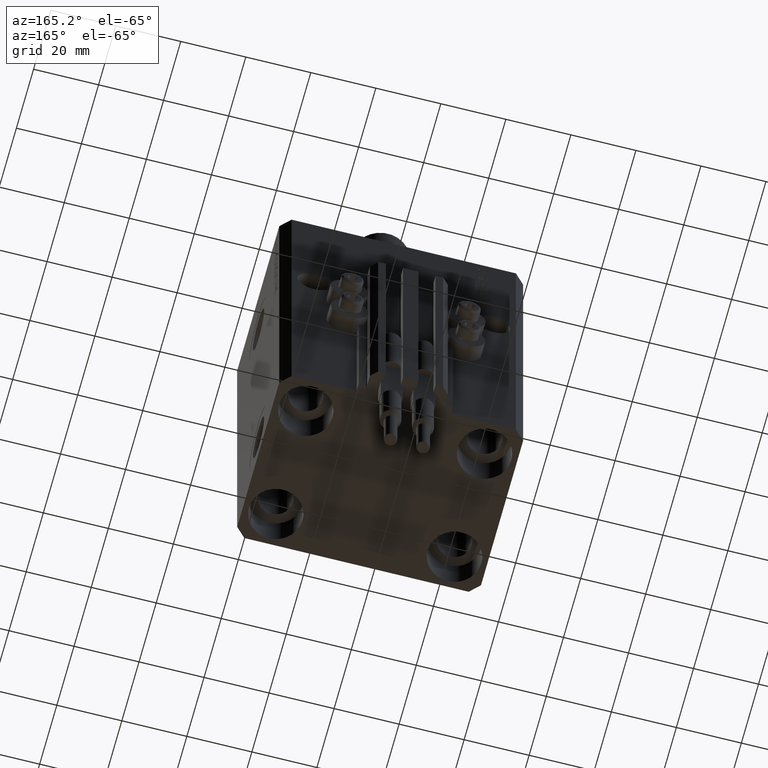
[diagram: clean part render]
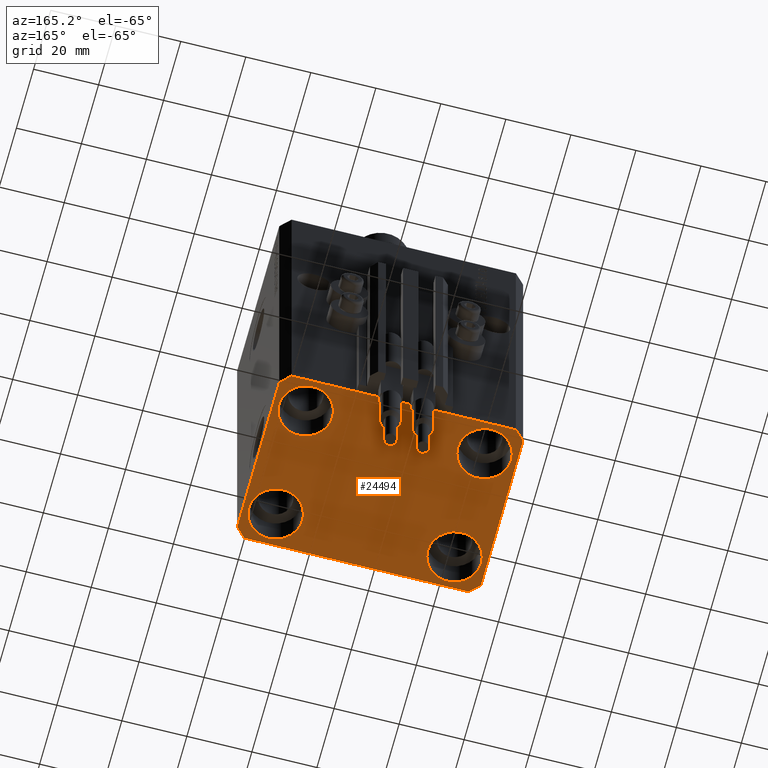
[diagram: same view with one face highlighted and labeled with its STEP entity id]
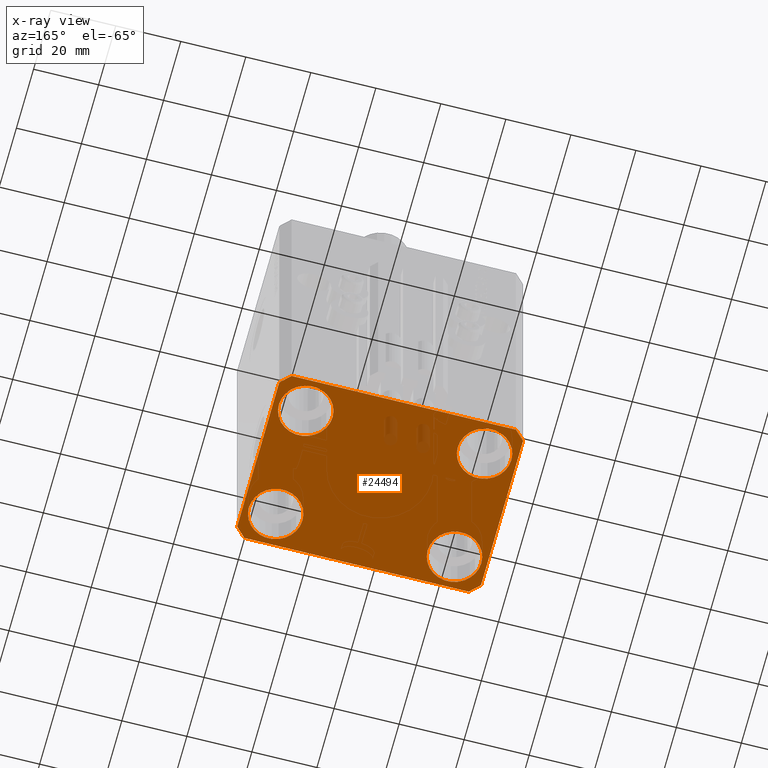
[diagram: x-ray of the same camera — body ghosted, the highlighted face saturated]
A machine part, auxiliary view. The second image highlights one B-rep face of the part: STEP entity #24494.
The next image is the same camera in x-ray: the body ghosted, the highlighted face saturated — about 2% of this face is hidden behind the body in this view.
In plain terms, the highlighted planar face has unit normal (0, 0, 1).
Its self-contained STEP definition (entity closure, byte-faithful):
#278 = DIRECTION ( 'NONE',  ( 1.000000000000000000, 0.000000000000000000, -0.000000000000000000 ) ) ;
#288 = DIRECTION ( 'NONE',  ( 1.000000000000000000, 0.000000000000000000, 0.000000000000000000 ) ) ;
#528 = CARTESIAN_POINT ( 'NONE',  ( 0.000000000000000000, 0.000000000000000000, -110.0000000000000000 ) ) ;
#650 = VERTEX_POINT ( 'NONE', #12497 ) ;
#865 = EDGE_CURVE ( 'NONE', #8314, #31905, #33914, .T. ) ;
#960 = EDGE_LOOP ( 'NONE', ( #37163, #20314 ) ) ;
#2544 = DIRECTION ( 'NONE',  ( 0.000000000000000000, -1.000000000000000000, 0.000000000000000000 ) ) ;
#2799 = VERTEX_POINT ( 'NONE', #30789 ) ;
#2801 = ORIENTED_EDGE ( 'NONE', *, *, #15355, .F. ) ;
#3242 = VECTOR ( 'NONE', #36074, 1000.000000000000000 ) ;
#3326 = VERTEX_POINT ( 'NONE', #42550 ) ;
#4000 = VERTEX_POINT ( 'NONE', #39557 ) ;
#4644 = ORIENTED_EDGE ( 'NONE', *, *, #865, .F. ) ;
#5446 = VERTEX_POINT ( 'NONE', #16632 ) ;
#5639 = CARTESIAN_POINT ( 'NONE',  ( -34.49999999999999289, 27.50000000000000000, -110.0000000000000000 ) ) ;
#5748 = EDGE_CURVE ( 'NONE', #28797, #2799, #36390, .T. ) ;
#6521 = EDGE_LOOP ( 'NONE', ( #28826, #8822 ) ) ;
#6542 = FACE_BOUND ( 'NONE', #6521, .T. ) ;
#6787 = FACE_BOUND ( 'NONE', #960, .T. ) ;
#7080 = AXIS2_PLACEMENT_3D ( 'NONE', #21799, #36268, #9581 ) ;
#7886 = DIRECTION ( 'NONE',  ( 1.000000000000000000, 0.000000000000000000, 0.000000000000000000 ) ) ;
#8008 = CARTESIAN_POINT ( 'NONE',  ( -37.49999999999999289, -24.50000000000000000, -110.0000000000000000 ) ) ;
#8022 = DIRECTION ( 'NONE',  ( 0.000000000000000000, 0.000000000000000000, 1.000000000000000000 ) ) ;
#8108 = AXIS2_PLACEMENT_3D ( 'NONE', #528, #8022, #278 ) ;
#8294 = DIRECTION ( 'NONE',  ( 0.7071067811865474617, 0.7071067811865474617, 0.000000000000000000 ) ) ;
#8314 = VERTEX_POINT ( 'NONE', #24810 ) ;
#8384 = CARTESIAN_POINT ( 'NONE',  ( 34.50000000000056843, 27.50000000000000000, -110.0000000000000000 ) ) ;
#8522 = EDGE_CURVE ( 'NONE', #31905, #3326, #27264, .T. ) ;
#8822 = ORIENTED_EDGE ( 'NONE', *, *, #5748, .T. ) ;
#8890 = AXIS2_PLACEMENT_3D ( 'NONE', #30104, #15865, #7886 ) ;
#9027 = AXIS2_PLACEMENT_3D ( 'NONE', #10675, #43850, #25658 ) ;
#9581 = DIRECTION ( 'NONE',  ( 1.000000000000000000, 0.000000000000000000, 0.000000000000000000 ) ) ;
#10166 = LINE ( 'NONE', #29139, #17078 ) ;
#10675 = CARTESIAN_POINT ( 'NONE',  ( 27.49999999999999645, 17.50000000000001066, -110.0000000000000000 ) ) ;
#10687 = VERTEX_POINT ( 'NONE', #47225 ) ;
#10774 = EDGE_CURVE ( 'NONE', #35570, #10687, #16669, .T. ) ;
#11871 = CARTESIAN_POINT ( 'NONE',  ( -34.49999999999999289, 27.50000000000000000, -110.0000000000000000 ) ) ;
#12031 = DIRECTION ( 'NONE',  ( 1.076236605503979380E-14, 1.000000000000000000, 0.000000000000000000 ) ) ;
#12046 = ORIENTED_EDGE ( 'NONE', *, *, #17196, .T. ) ;
#12497 = CARTESIAN_POINT ( 'NONE',  ( 35.74999999999999289, 17.50000000000001066, -110.0000000000000000 ) ) ;
#14452 = CARTESIAN_POINT ( 'NONE',  ( 27.50000000000000355, -17.50000000000000000, -110.0000000000000000 ) ) ;
#14461 = DIRECTION ( 'NONE',  ( 1.000000000000000000, 0.000000000000000000, 0.000000000000000000 ) ) ;
#14468 = CIRCLE ( 'NONE', #8890, 8.250000000000000000 ) ;
#14546 = EDGE_CURVE ( 'NONE', #21165, #46350, #28610, .T. ) ;
#14581 = ORIENTED_EDGE ( 'NONE', *, *, #32659, .F. ) ;
#14656 = EDGE_CURVE ( 'NONE', #45911, #8314, #26289, .T. ) ;
#14885 = AXIS2_PLACEMENT_3D ( 'NONE', #49006, #26828, #23084 ) ;
#15214 = EDGE_LOOP ( 'NONE', ( #18674, #48850 ) ) ;
#15355 = EDGE_CURVE ( 'NONE', #22888, #26479, #24367, .T. ) ;
#15444 = DIRECTION ( 'NONE',  ( -0.000000000000000000, -0.000000000000000000, 1.000000000000000000 ) ) ;
#15865 = DIRECTION ( 'NONE',  ( -0.000000000000000000, -0.000000000000000000, 1.000000000000000000 ) ) ;
#16540 = CARTESIAN_POINT ( 'NONE',  ( -27.50000000000000355, -17.50000000000000000, -110.0000000000000000 ) ) ;
#16632 = CARTESIAN_POINT ( 'NONE',  ( 37.50000000000051870, 24.49999999999995381, -110.0000000000000000 ) ) ;
#16669 = CIRCLE ( 'NONE', #44514, 8.250000000000000000 ) ;
#17078 = VECTOR ( 'NONE', #17889, 1000.000000000000114 ) ;
#17195 = EDGE_CURVE ( 'NONE', #4000, #22888, #34078, .T. ) ;
#17196 = EDGE_CURVE ( 'NONE', #46350, #21165, #14468, .T. ) ;
#17710 = VERTEX_POINT ( 'NONE', #29736 ) ;
#17889 = DIRECTION ( 'NONE',  ( -0.7071067811865356934, 0.7071067811865594521, 0.000000000000000000 ) ) ;
#18091 = EDGE_CURVE ( 'NONE', #2799, #28797, #43964, .T. ) ;
#18674 = ORIENTED_EDGE ( 'NONE', *, *, #28884, .T. ) ;
#20314 = ORIENTED_EDGE ( 'NONE', *, *, #23500, .T. ) ;
#20505 = ORIENTED_EDGE ( 'NONE', *, *, #14656, .F. ) ;
#20690 = CARTESIAN_POINT ( 'NONE',  ( 35.75000000000000711, -17.50000000000000000, -110.0000000000000000 ) ) ;
#20869 = ORIENTED_EDGE ( 'NONE', *, *, #17195, .F. ) ;
#21165 = VERTEX_POINT ( 'NONE', #35728 ) ;
#21718 = CIRCLE ( 'NONE', #37658, 8.250000000000000000 ) ;
#21799 = CARTESIAN_POINT ( 'NONE',  ( -27.50000000000000355, 17.50000000000000000, -110.0000000000000000 ) ) ;
#22041 = CARTESIAN_POINT ( 'NONE',  ( -27.50000000000000355, -17.50000000000000000, -110.0000000000000000 ) ) ;
#22460 = AXIS2_PLACEMENT_3D ( 'NONE', #14452, #15444, #41611 ) ;
#22764 = CARTESIAN_POINT ( 'NONE',  ( 27.49999999999999645, 17.50000000000001066, -110.0000000000000000 ) ) ;
#22888 = VERTEX_POINT ( 'NONE', #11871 ) ;
#22982 = EDGE_LOOP ( 'NONE', ( #12046, #36035 ) ) ;
#23084 = DIRECTION ( 'NONE',  ( 1.000000000000000000, 0.000000000000000000, 0.000000000000000000 ) ) ;
#23244 = CARTESIAN_POINT ( 'NONE',  ( -37.49999999999999289, 24.50000000000000000, -110.0000000000000000 ) ) ;
#23500 = EDGE_CURVE ( 'NONE', #10687, #35570, #21718, .T. ) ;
#24367 = LINE ( 'NONE', #5639, #3242 ) ;
#24494 = ADVANCED_FACE ( 'NONE', ( #6787, #6542, #25758, #34704, #34457 ), #41929, .F. ) ;
#24810 = CARTESIAN_POINT ( 'NONE',  ( -34.49999999999998579, -27.49999999999999645, -110.0000000000000000 ) ) ;
#25658 = DIRECTION ( 'NONE',  ( 1.000000000000000000, 0.000000000000000000, 0.000000000000000000 ) ) ;
#25758 = FACE_BOUND ( 'NONE', #15214, .T. ) ;
#25790 = DIRECTION ( 'NONE',  ( 0.7071067811865483499, -0.7071067811865466846, 0.000000000000000000 ) ) ;
#26289 = LINE ( 'NONE', #33762, #31131 ) ;
#26479 = VERTEX_POINT ( 'NONE', #23244 ) ;
#26494 = CARTESIAN_POINT ( 'NONE',  ( -37.49999999999999289, 24.50000000000000000, -110.0000000000000000 ) ) ;
#26775 = DIRECTION ( 'NONE',  ( -0.000000000000000000, -0.000000000000000000, 1.000000000000000000 ) ) ;
#26828 = DIRECTION ( 'NONE',  ( -0.000000000000000000, -0.000000000000000000, 1.000000000000000000 ) ) ;
#27021 = CARTESIAN_POINT ( 'NONE',  ( 37.49999999999999289, -24.50000000000000000, -110.0000000000000000 ) ) ;
#27264 = LINE ( 'NONE', #38469, #39660 ) ;
#28490 = CIRCLE ( 'NONE', #35630, 8.249999999999992895 ) ;
#28610 = CIRCLE ( 'NONE', #7080, 8.250000000000000000 ) ;
#28797 = VERTEX_POINT ( 'NONE', #20690 ) ;
#28826 = ORIENTED_EDGE ( 'NONE', *, *, #18091, .T. ) ;
#28884 = EDGE_CURVE ( 'NONE', #17710, #650, #43256, .T. ) ;
#29139 = CARTESIAN_POINT ( 'NONE',  ( 37.50000000000051870, 24.49999999999995381, -110.0000000000000000 ) ) ;
#29333 = EDGE_LOOP ( 'NONE', ( #20869, #14581, #43099, #42533, #4644, #20505, #46494, #2801 ) ) ;
#29736 = CARTESIAN_POINT ( 'NONE',  ( 19.25000000000000000, 17.50000000000001066, -110.0000000000000000 ) ) ;
#29780 = DIRECTION ( 'NONE',  ( 1.000000000000000000, 0.000000000000000000, 0.000000000000000000 ) ) ;
#30008 = VECTOR ( 'NONE', #12031, 1000.000000000000000 ) ;
#30104 = CARTESIAN_POINT ( 'NONE',  ( -27.50000000000000355, 17.50000000000000000, -110.0000000000000000 ) ) ;
#30330 = EDGE_CURVE ( 'NONE', #26479, #45911, #37205, .T. ) ;
#30789 = CARTESIAN_POINT ( 'NONE',  ( 19.25000000000000000, -17.50000000000000000, -110.0000000000000000 ) ) ;
#30920 = CARTESIAN_POINT ( 'NONE',  ( -35.75000000000000711, 17.50000000000000000, -110.0000000000000000 ) ) ;
#31131 = VECTOR ( 'NONE', #25790, 1000.000000000000000 ) ;
#31824 = CARTESIAN_POINT ( 'NONE',  ( -35.75000000000000711, -17.50000000000000000, -110.0000000000000000 ) ) ;
#31905 = VERTEX_POINT ( 'NONE', #42799 ) ;
#32659 = EDGE_CURVE ( 'NONE', #5446, #4000, #10166, .T. ) ;
#33762 = CARTESIAN_POINT ( 'NONE',  ( -37.49999999999999289, -24.50000000000000000, -110.0000000000000000 ) ) ;
#33914 = LINE ( 'NONE', #41621, #46563 ) ;
#34078 = LINE ( 'NONE', #8384, #41512 ) ;
#34457 = FACE_OUTER_BOUND ( 'NONE', #29333, .T. ) ;
#34704 = FACE_BOUND ( 'NONE', #22982, .T. ) ;
#35570 = VERTEX_POINT ( 'NONE', #31824 ) ;
#35630 = AXIS2_PLACEMENT_3D ( 'NONE', #22764, #37466, #288 ) ;
#35728 = CARTESIAN_POINT ( 'NONE',  ( -19.25000000000000355, 17.50000000000000000, -110.0000000000000000 ) ) ;
#36035 = ORIENTED_EDGE ( 'NONE', *, *, #14546, .T. ) ;
#36074 = DIRECTION ( 'NONE',  ( -0.7071067811865471286, -0.7071067811865479058, 0.000000000000000000 ) ) ;
#36226 = DIRECTION ( 'NONE',  ( 1.000000000000000000, 0.000000000000000000, 0.000000000000000000 ) ) ;
#36268 = DIRECTION ( 'NONE',  ( -0.000000000000000000, -0.000000000000000000, 1.000000000000000000 ) ) ;
#36390 = CIRCLE ( 'NONE', #14885, 8.250000000000000000 ) ;
#37163 = ORIENTED_EDGE ( 'NONE', *, *, #10774, .T. ) ;
#37205 = LINE ( 'NONE', #26494, #48074 ) ;
#37466 = DIRECTION ( 'NONE',  ( -0.000000000000000000, -0.000000000000000000, 1.000000000000000000 ) ) ;
#37658 = AXIS2_PLACEMENT_3D ( 'NONE', #16540, #39958, #36226 ) ;
#38469 = CARTESIAN_POINT ( 'NONE',  ( 34.49999999999999289, -27.49999999999999645, -110.0000000000000000 ) ) ;
#38773 = EDGE_CURVE ( 'NONE', #650, #17710, #28490, .T. ) ;
#39557 = CARTESIAN_POINT ( 'NONE',  ( 34.50000000000056843, 27.50000000000000000, -110.0000000000000000 ) ) ;
#39660 = VECTOR ( 'NONE', #8294, 1000.000000000000114 ) ;
#39958 = DIRECTION ( 'NONE',  ( -0.000000000000000000, -0.000000000000000000, 1.000000000000000000 ) ) ;
#40761 = EDGE_CURVE ( 'NONE', #3326, #5446, #46188, .T. ) ;
#41512 = VECTOR ( 'NONE', #45780, 1000.000000000000000 ) ;
#41611 = DIRECTION ( 'NONE',  ( 1.000000000000000000, 0.000000000000000000, 0.000000000000000000 ) ) ;
#41621 = CARTESIAN_POINT ( 'NONE',  ( -34.49999999999998579, -27.49999999999999645, -110.0000000000000000 ) ) ;
#41929 = PLANE ( 'NONE',  #8108 ) ;
#42533 = ORIENTED_EDGE ( 'NONE', *, *, #8522, .F. ) ;
#42550 = CARTESIAN_POINT ( 'NONE',  ( 37.49999999999999289, -24.50000000000000000, -110.0000000000000000 ) ) ;
#42799 = CARTESIAN_POINT ( 'NONE',  ( 34.49999999999999289, -27.49999999999999645, -110.0000000000000000 ) ) ;
#43099 = ORIENTED_EDGE ( 'NONE', *, *, #40761, .F. ) ;
#43256 = CIRCLE ( 'NONE', #9027, 8.249999999999992895 ) ;
#43850 = DIRECTION ( 'NONE',  ( -0.000000000000000000, -0.000000000000000000, 1.000000000000000000 ) ) ;
#43964 = CIRCLE ( 'NONE', #22460, 8.250000000000000000 ) ;
#44514 = AXIS2_PLACEMENT_3D ( 'NONE', #22041, #26775, #29780 ) ;
#45780 = DIRECTION ( 'NONE',  ( -1.000000000000000000, 0.000000000000000000, 0.000000000000000000 ) ) ;
#45911 = VERTEX_POINT ( 'NONE', #8008 ) ;
#46188 = LINE ( 'NONE', #27021, #30008 ) ;
#46350 = VERTEX_POINT ( 'NONE', #30920 ) ;
#46494 = ORIENTED_EDGE ( 'NONE', *, *, #30330, .F. ) ;
#46563 = VECTOR ( 'NONE', #14461, 1000.000000000000000 ) ;
#47225 = CARTESIAN_POINT ( 'NONE',  ( -19.25000000000000355, -17.50000000000000000, -110.0000000000000000 ) ) ;
#48074 = VECTOR ( 'NONE', #2544, 1000.000000000000000 ) ;
#48850 = ORIENTED_EDGE ( 'NONE', *, *, #38773, .T. ) ;
#49006 = CARTESIAN_POINT ( 'NONE',  ( 27.50000000000000355, -17.50000000000000000, -110.0000000000000000 ) ) ;